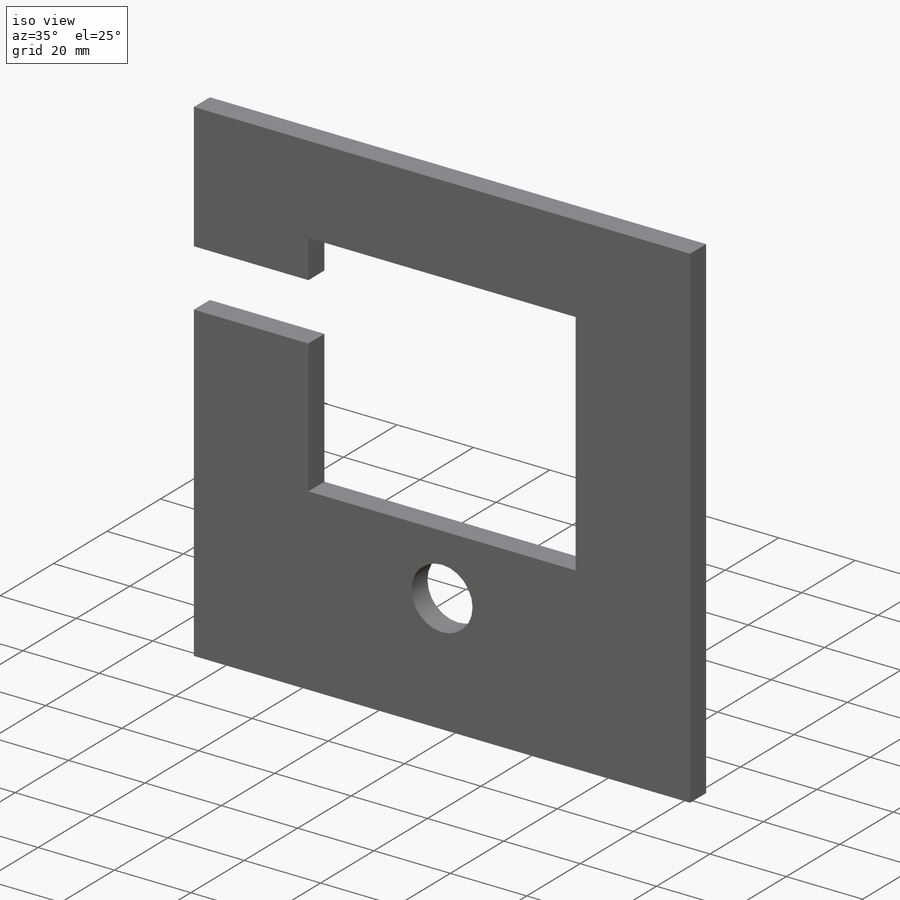
[diagram: iso view]
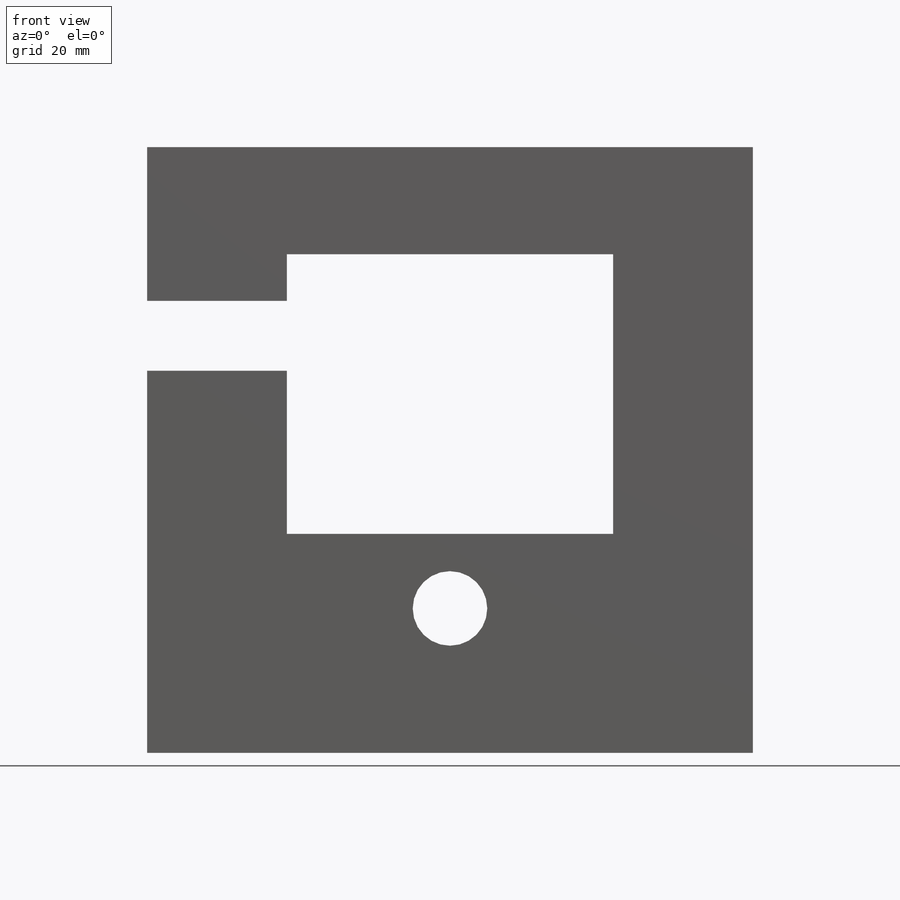
[diagram: front view]
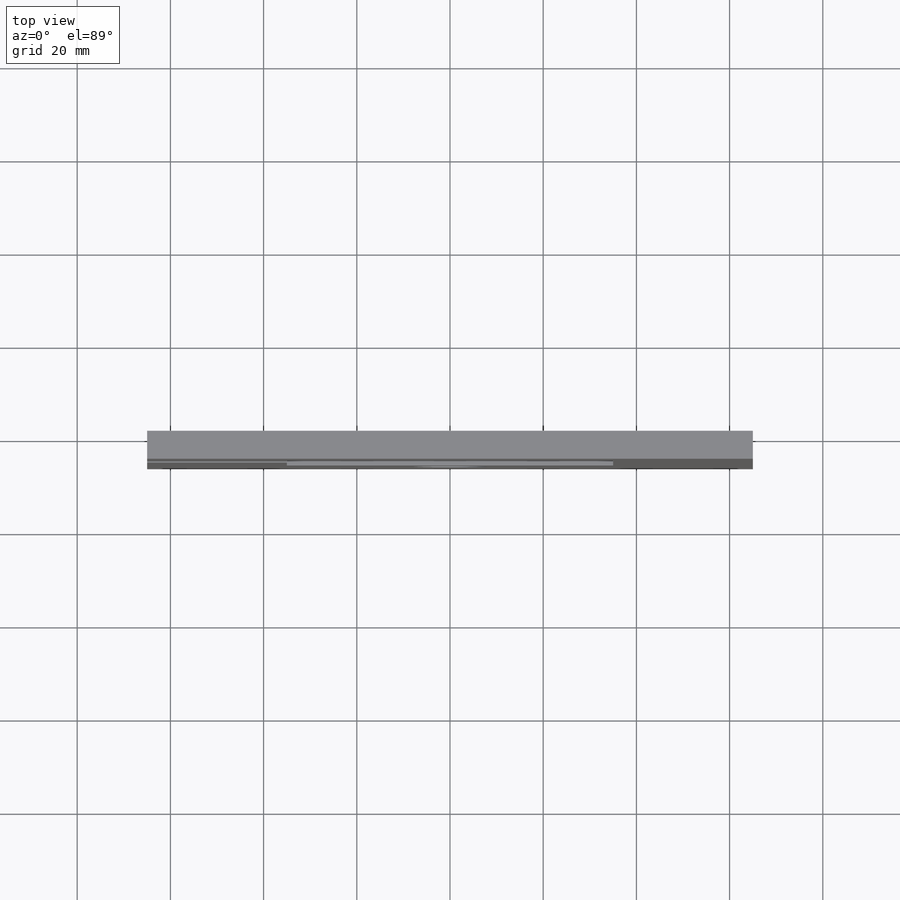
[diagram: top view]
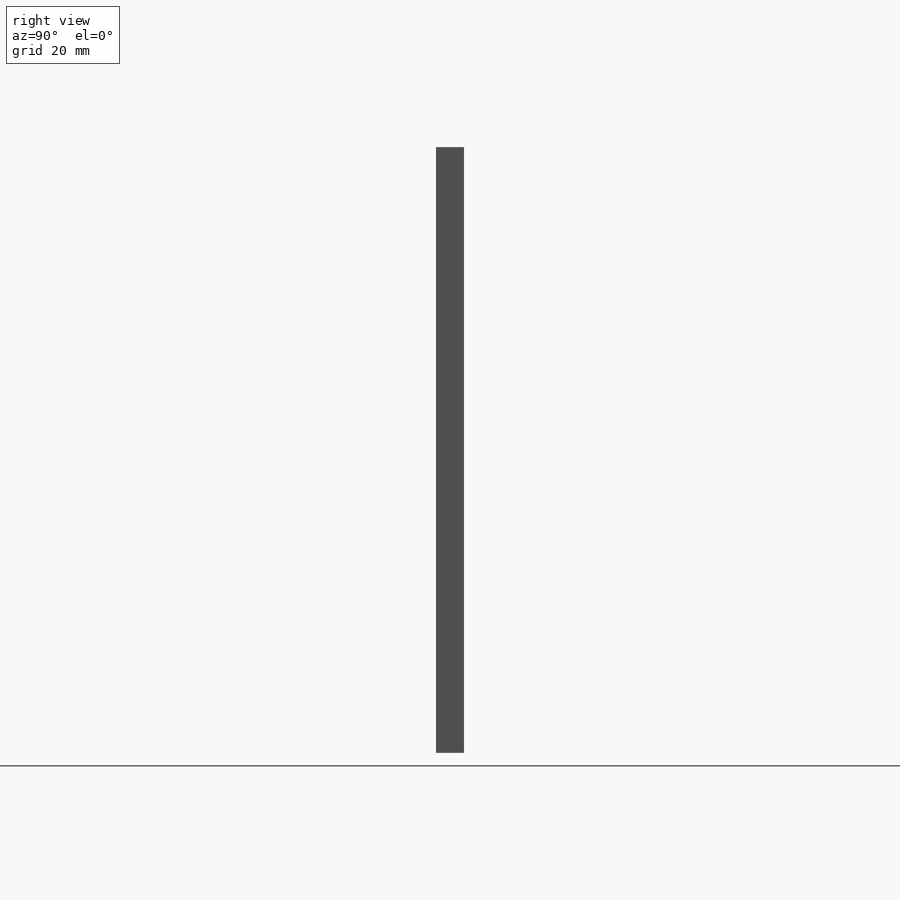
[diagram: right view]
SOLIDWORKS PART (.sldprt)
format: sldprt  version: not decoded by parser v0  size: 174,080 bytes
history: native  units: mm
features: sketch x4, plane x3, cut_extrude x3, material x1, extrude x1 (+10 scaffold rows collapsed)
feature tree (22):
  scaffold x10  (default folders/planes/origin — collapsed)
  material  "Materiale <non specificato>"
  plane  "Piano frontale"
  plane  "Piano superiore"
  plane  "Piano destro"
  sketch  "Schizzo1"  dims[c1.D1=~51.484824mm c1.D2=~85.80804mm c2.D1=130.0mm c2.D2=130.0mm]
  extrude  "Estrusione-Estrusione1"  Depth=6mm
  sketch  "Schizzo2"  dims[c1.D1=~68.704861mm c1.D2=~84.449725mm c2.D1=70.0mm c2.D2=60.0mm c2.D3=23.0mm c2.D4=30.0mm c2.D5=60.0mm]
  cut_extrude  "Taglio-Estrusione1"  Depth=15mm
  sketch  "Schizzo3"  dims[D1=16.0mm D2=16.0mm]
  cut_extrude  "Taglio-Estrusione2"  Depth=15mm
  sketch  "Schizzo4"  dims[c1.D1=~25.764323mm c1.D2=~10.496576mm c2.D1=30.0mm c2.D2=15.0mm c2.D3=33.0mm c2.D4=0.0mm]
  cut_extrude  "Taglio-Estrusione3"  Depth=15mm
decode coverage: 8 of 8 modeling features carry decoded parameters
note: ~ marks probable driven/reference dimensions
note: suppression state not decoded; provenance and decode notes live in map.json
